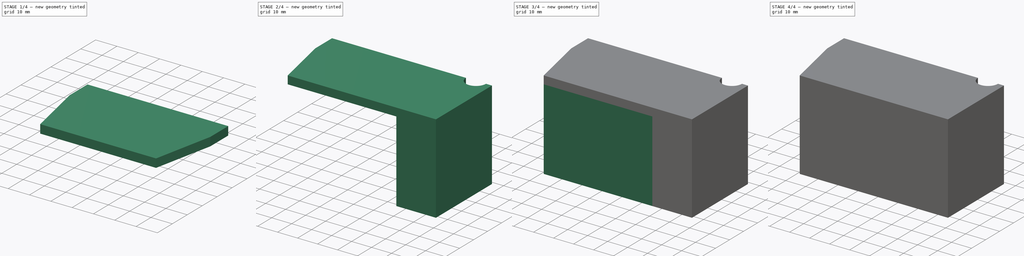
[diagram: build sequence overview — one tinted view per stage of 4, left to right]
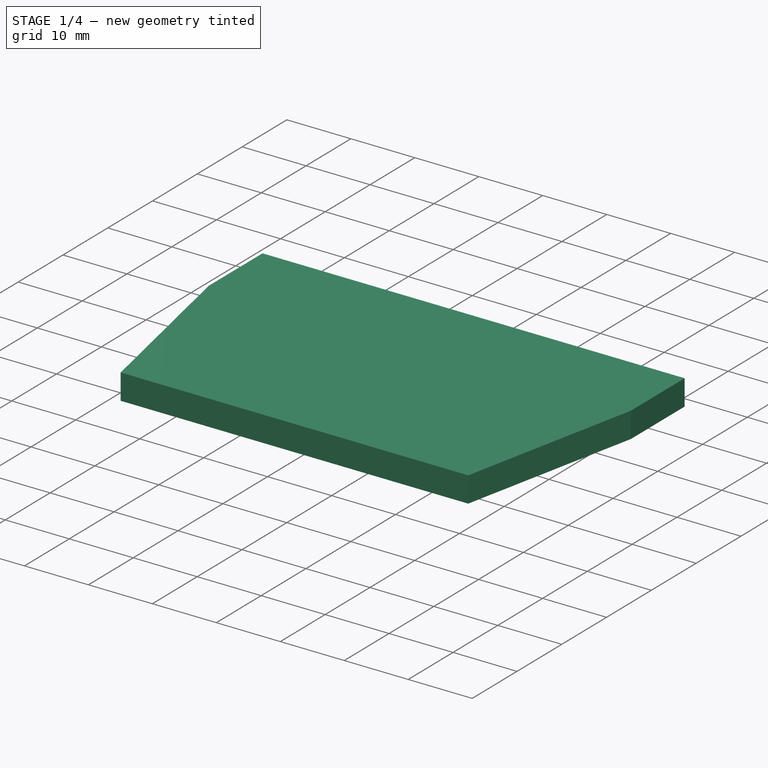
[diagram: stage 1 of 4 — iso view after this stage's code; geometry added in this stage tinted green]
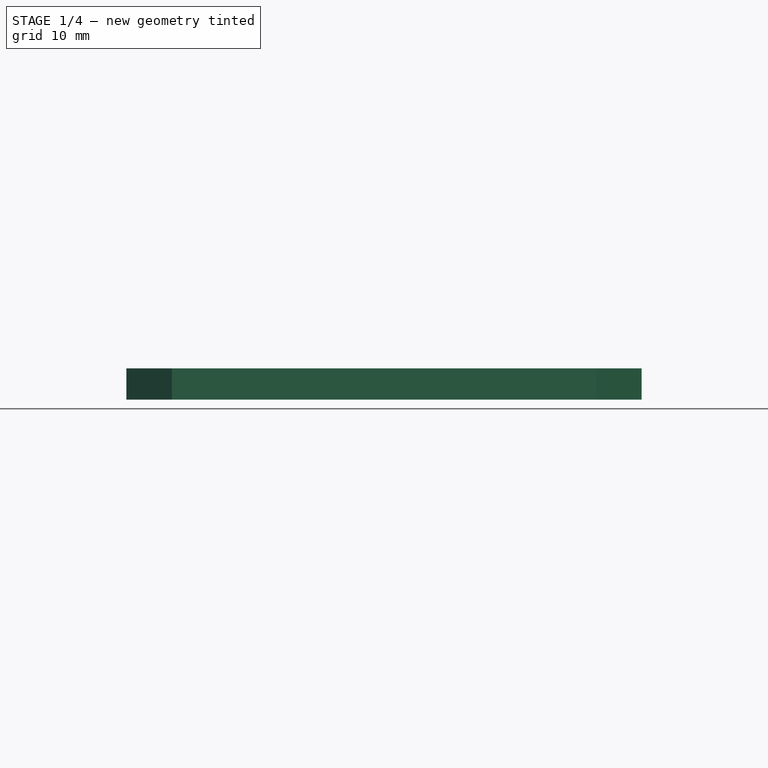
[diagram: stage 1 of 4 — front view after this stage's code; geometry added in this stage tinted green]
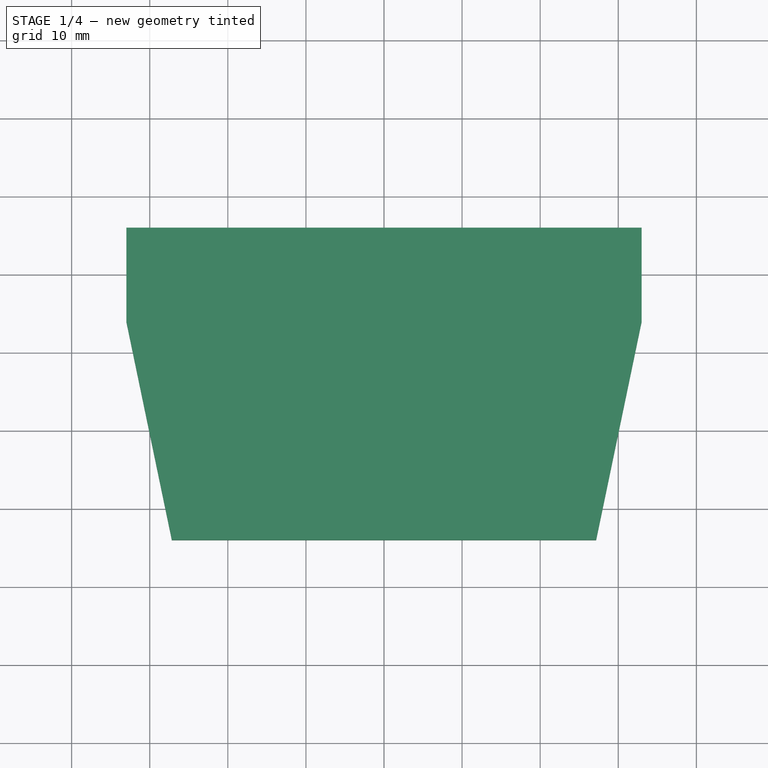
[diagram: stage 1 of 4 — top view after this stage's code; geometry added in this stage tinted green]
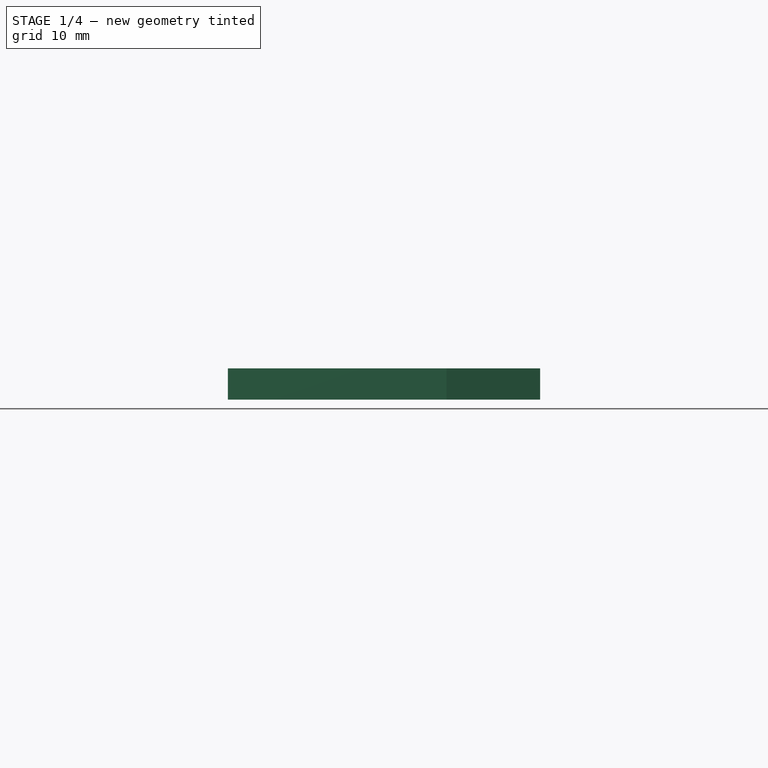
[diagram: stage 1 of 4 — right view after this stage's code; geometry added in this stage tinted green]
FCSTD DOCUMENT  (FreeCAD 0.19RUnknown)
Label: ink
License: All rights reserved
LicenseURL: http://en.wikipedia.org/wiki/All_rights_reserved
objects: Sketcher::SketchObject×4, Part::Extrusion×4, Part::Chamfer×4, Part::MultiFuse×1
note: 13 computed .brp shape members not serialized (recipe doc carries the construction recipe); baked Part::Feature solids carry a one-line shape summary decoded from their .brp

FEATURE [Sketcher::SketchObject] Sketch
  FullyConstrained = true
  sketch-geometry (16):
    g0: LineSegment StartX=-24 StartY=0 StartZ=0 EndX=24 EndY=0 EndZ=0
    g1: LineSegment StartX=-29 StartY=24 StartZ=0 EndX=29 EndY=24 EndZ=0
    g2: GeomPoint X=0 Y=24 Z=0
    g3: LineSegment StartX=-24 StartY=0 StartZ=0 EndX=-29 EndY=24 EndZ=0
    g4: LineSegment StartX=24 StartY=0 StartZ=0 EndX=29 EndY=24 EndZ=0
    g5: LineSegment StartX=29 StartY=24 StartZ=0 EndX=29 EndY=36 EndZ=0
    g6: LineSegment StartX=-29 StartY=24 StartZ=0 EndX=-29 EndY=36 EndZ=0
    g7: LineSegment StartX=29 StartY=36 StartZ=0 EndX=33 EndY=36 EndZ=0
    g8: LineSegment StartX=33 StartY=36 StartZ=0 EndX=33 EndY=24 EndZ=0
    g9: LineSegment StartX=33 StartY=24 StartZ=0 EndX=27.1667 EndY=-4 EndZ=0
    g10: LineSegment StartX=27.1667 StartY=-4 StartZ=0 EndX=-27.1667 EndY=-4 EndZ=0
    g11: LineSegment StartX=-27.1667 StartY=-4 StartZ=0 EndX=-33 EndY=24 EndZ=0
    g12: LineSegment StartX=-33 StartY=24 StartZ=0 EndX=-33 EndY=36 EndZ=0
    g13: LineSegment StartX=-33 StartY=36 StartZ=0 EndX=-29 EndY=36 EndZ=0
    g14: LineSegment StartX=29 StartY=24 StartZ=0 EndX=33 EndY=24 EndZ=0
    g15: LineSegment StartX=-29 StartY=24 StartZ=0 EndX=-33 EndY=24 EndZ=0
  constraints (42):
    c: Horizontal(g0)
    c: DistanceX(g0,g0) = 48
    c: Symmetric(g0,g0,g-1)
    c: Horizontal(g1)
    c: DistanceX(g1,g1) = 58
    c: PointOnObject(g2,g-2)
    c: Symmetric(g1,g1,g2)
    c: DistanceY(g0,g1) = 24
    c: Coincident(g3,g0)
    c: Coincident(g3,g1)
    c: Coincident(g4,g0)
    c: Coincident(g4,g1)
    c: Coincident(g5,g4)
    c: Vertical(g5)
    c: Coincident(g6,g3)
    c: Vertical(g6)
    c: Equal(g5,g6)
    c: DistanceY(g5,g5) = 12
    c: Coincident(g7,g5)
    c: Horizontal(g7)
    c: Coincident(g8,g7)
    c: Vertical(g8)
    c: Coincident(g9,g8)
    c: Coincident(g10,g9)
    c: Horizontal(g10)
    c: Coincident(g11,g10)
    c: Coincident(g12,g11)
    c: Vertical(g12)
    c: Coincident(g13,g12)
    c: Coincident(g13,g6)
    c: Horizontal(g13)
    c: Equal(g7,g13)
    c: Equal(g12,g8)
    c: Equal(g9,g11)
    c: Coincident(g14,g4)
    c: Coincident(g14,g8)
    c: Horizontal(g14)
    c: Coincident(g15,g3)
    c: Coincident(g15,g11)
    c: Parallel(g4,g9)
    c: DistanceX(g7,g7) = 4
    c: DistanceY(g9,g0) = 4
FEATURE [Part::Extrusion] Extrude
  Base = -> Sketch
  Dir = (0,0,1)
  DirMode = 2
  FaceMakerClass = Part::FaceMakerBullseye
  LengthFwd = 36.5
  LengthRev = 0
  Solid = true
  Symmetric = false
FEATURE [Sketcher::SketchObject] Sketch002
  ExternalGeometry = -> [Extrude]
  FullyConstrained = true
  MapMode = 5
  Placement = pos=(0,0,0) rot=(1,0,0;3.14159rad)
  Support = -> [Extrude]
  sketch-geometry (6):
    g0: LineSegment StartX=-33 StartY=-36 StartZ=0 EndX=-33 EndY=-24 EndZ=0
    g1: LineSegment StartX=-33 StartY=-24 StartZ=0 EndX=-27.1667 EndY=4 EndZ=0
    g2: LineSegment StartX=-27.1667 StartY=4 StartZ=0 EndX=27.1667 EndY=4 EndZ=0
    g3: LineSegment StartX=27.1667 StartY=4 StartZ=0 EndX=33 EndY=-24 EndZ=0
    g4: LineSegment StartX=33 StartY=-24 StartZ=0 EndX=33 EndY=-36 EndZ=0
    g5: LineSegment StartX=33 StartY=-36 StartZ=0 EndX=-33 EndY=-36 EndZ=0
  constraints (12):
    c: Coincident(g0,g-3)
    c: Coincident(g0,g-4)
    c: Coincident(g1,g0)
    c: Coincident(g1,g-5)
    c: Coincident(g2,g1)
    c: Coincident(g2,g-6)
    c: Coincident(g3,g2)
    c: Coincident(g3,g-7)
    c: Coincident(g4,g3)
    c: Coincident(g4,g-7)
    c: Coincident(g5,g4)
    c: Coincident(g5,g0)
FEATURE [Part::Extrusion] Extrude002
  Base = -> Sketch002
  Dir = (0,0,-1)
  DirMode = 2
  FaceMakerClass = Part::FaceMakerBullseye
  LengthFwd = 4
  LengthRev = 0
  Solid = true
  Symmetric = false
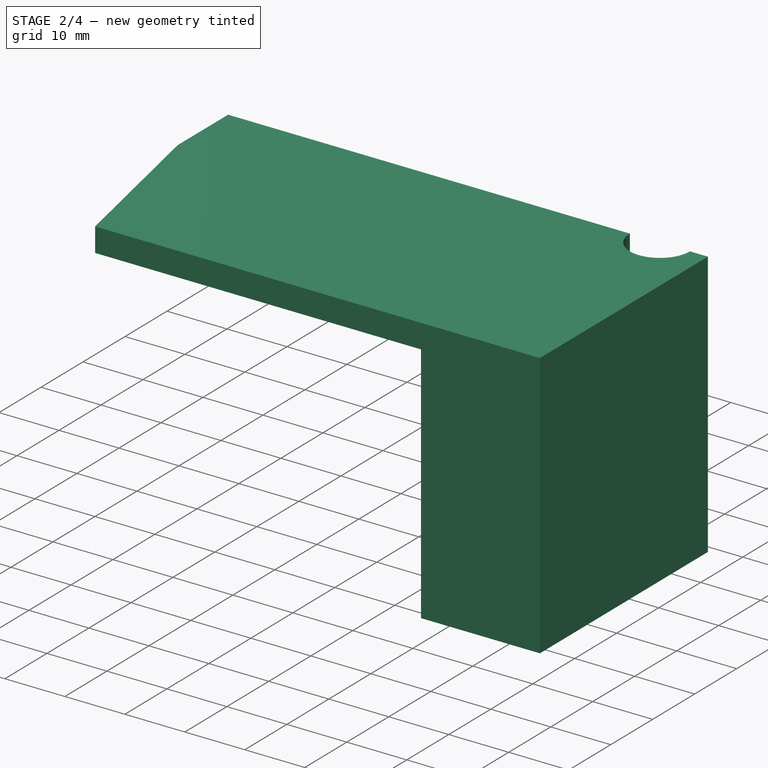
[diagram: stage 2 of 4 — iso view after this stage's code; geometry added in this stage tinted green]
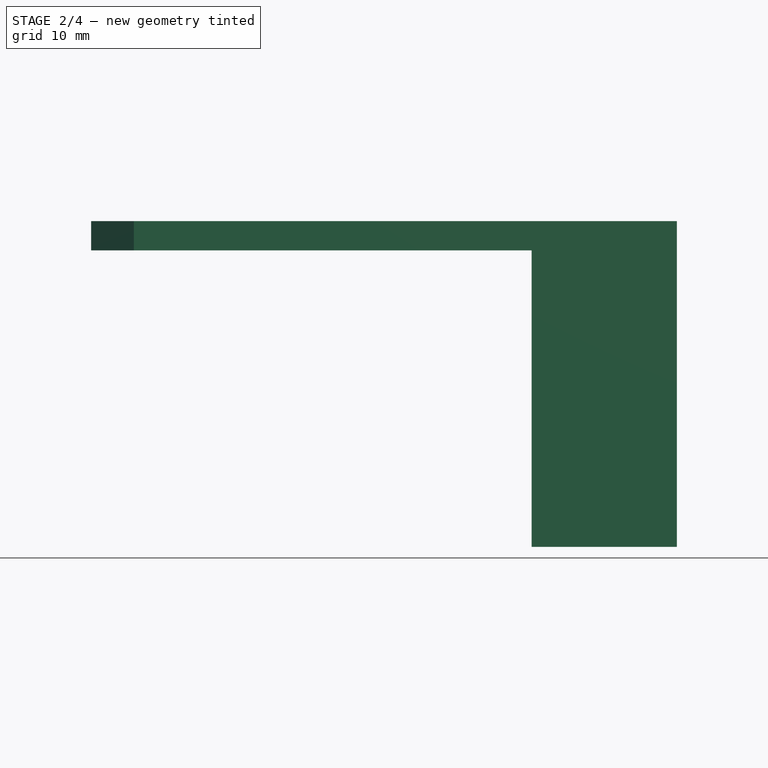
[diagram: stage 2 of 4 — front view after this stage's code; geometry added in this stage tinted green]
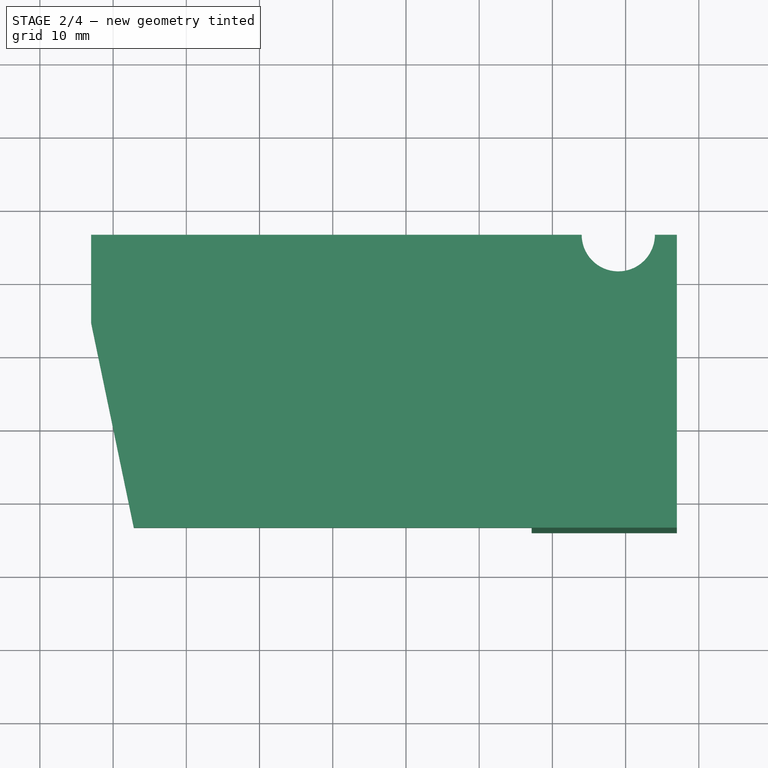
[diagram: stage 2 of 4 — top view after this stage's code; geometry added in this stage tinted green]
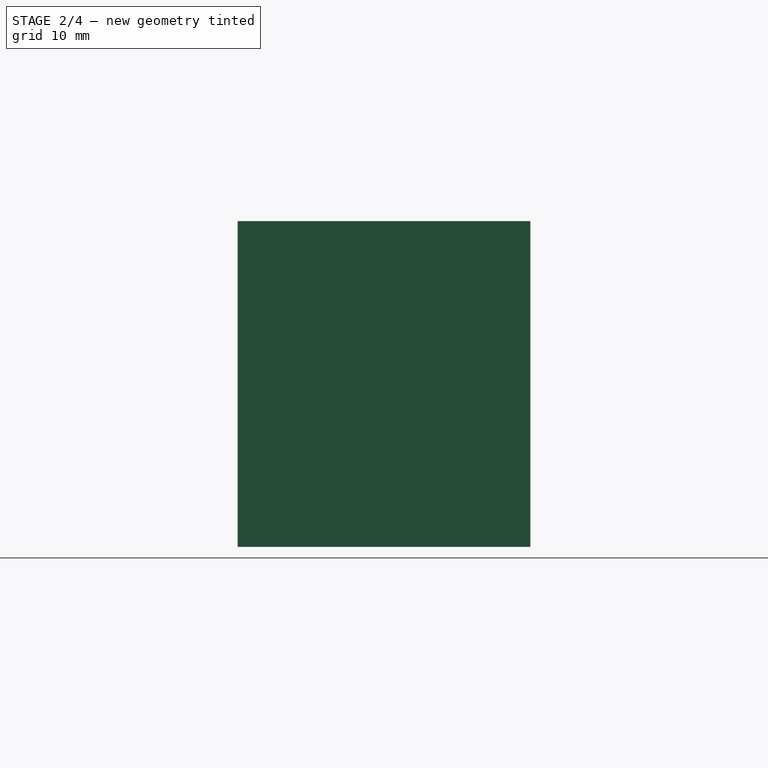
[diagram: stage 2 of 4 — right view after this stage's code; geometry added in this stage tinted green]
FEATURE [Sketcher::SketchObject] Sketch001
  ExternalGeometry = -> [Extrude]
  FullyConstrained = false
  MapMode = 5
  Placement = pos=(0,0,36.5) rot=(0,0,1;0rad)
  Support = -> [Extrude]
  sketch-geometry (6):
    g0: LineSegment StartX=-33 StartY=36 StartZ=0 EndX=33 EndY=36 EndZ=0
    g1: LineSegment StartX=-33 StartY=36 StartZ=0 EndX=-33 EndY=24 EndZ=0
    g2: LineSegment StartX=-33 StartY=24 StartZ=0 EndX=-27.1667 EndY=-4 EndZ=0
    g3: LineSegment StartX=-27.1667 StartY=-4 StartZ=0 EndX=27.1667 EndY=-4 EndZ=0
    g4: LineSegment StartX=27.1667 StartY=-4 StartZ=0 EndX=33 EndY=24 EndZ=0
    g5: LineSegment StartX=33 StartY=24 StartZ=0 EndX=33 EndY=36 EndZ=0
  constraints (12):
    c: Coincident(g0,g-3)
    c: Coincident(g0,g-8)
    c: Coincident(g1,g0)
    c: Coincident(g1,g-4)
    c: Coincident(g2,g1)
    c: Coincident(g2,g-5)
    c: Coincident(g3,g2)
    c: Coincident(g3,g-6)
    c: Coincident(g4,g3)
    c: Coincident(g4,g-7)
    c: Coincident(g5,g4)
    c: Coincident(g5,g0)
FEATURE [Part::Extrusion] Extrude001
  Base = -> Sketch001
  Dir = (0,0,1)
  DirMode = 2
  FaceMakerClass = Part::FaceMakerBullseye
  LengthFwd = 4
  LengthRev = 0
  Solid = true
  Symmetric = false
FEATURE [Sketcher::SketchObject] Sketch003
  ExternalGeometry = -> [Extrude002]
  FullyConstrained = true
  MapMode = 5
  Placement = pos=(0,0,-4) rot=(1,0,0;3.14159rad)
  Support = -> [Extrude002]
  sketch-geometry (9):
    g0: LineSegment StartX=27.1667 StartY=4 StartZ=0 EndX=47 EndY=4 EndZ=0
    g1: LineSegment StartX=33 StartY=-36 StartZ=0 EndX=34 EndY=-36 EndZ=0
    g2: LineSegment StartX=34 StartY=-36 StartZ=0 EndX=44 EndY=-36 EndZ=0
    g3: Circle CenterX=39 CenterY=-36 CenterZ=0 NormalX=0 NormalY=0 NormalZ=1 AngleXU=0 Radius=5
    g4: ArcOfCircle CenterX=39 CenterY=-36 CenterZ=0 NormalX=0 NormalY=0 NormalZ=1 AngleXU=0 Radius=5 StartAngle=2.78e-14 EndAngle=3.14159
    g5: LineSegment StartX=44 StartY=-36 StartZ=0 EndX=47 EndY=-36 EndZ=0
    g6: LineSegment StartX=47 StartY=-36 StartZ=0 EndX=47 EndY=4 EndZ=0
    g7: LineSegment StartX=27.1667 StartY=4 StartZ=0 EndX=33 EndY=-24 EndZ=0
    g8: LineSegment StartX=33 StartY=-24 StartZ=0 EndX=33 EndY=-36 EndZ=0
  constraints (23):
    c: Coincident(g0,g-4)
    c: Horizontal(g0)
    c: Coincident(g1,g-3)
    c: Horizontal(g1)
    c: Coincident(g2,g1)
    c: PointOnObject(g1,g3)
    c: PointOnObject(g3,g2)
    c: Coincident(g4,g3)
    c: Coincident(g4,g1)
    c: Coincident(g4,g2)
    c: Coincident(g5,g4)
    c: Horizontal(g5)
    c: Coincident(g6,g5)
    c: Coincident(g6,g0)
    c: DistanceX(g1,g1) = 1
    c: DistanceX(g2,g2) = 10
    c: Vertical(g6)
    c: Coincident(g7,g0)
    c: Coincident(g7,g-4)
    c: Coincident(g8,g7)
    c: Coincident(g8,g1)
    c: Horizontal(g2)
    c: DistanceX(g5,g5) = 3
FEATURE [Part::Extrusion] Extrude003
  Base = -> Sketch003
  Dir = (0,0,-1)
  DirLink = -> Extrude [Edge11]
  DirMode = 2
  FaceMakerClass = Part::FaceMakerBullseye
  LengthFwd = -44.5
  LengthRev = 0
  Solid = true
  Symmetric = false
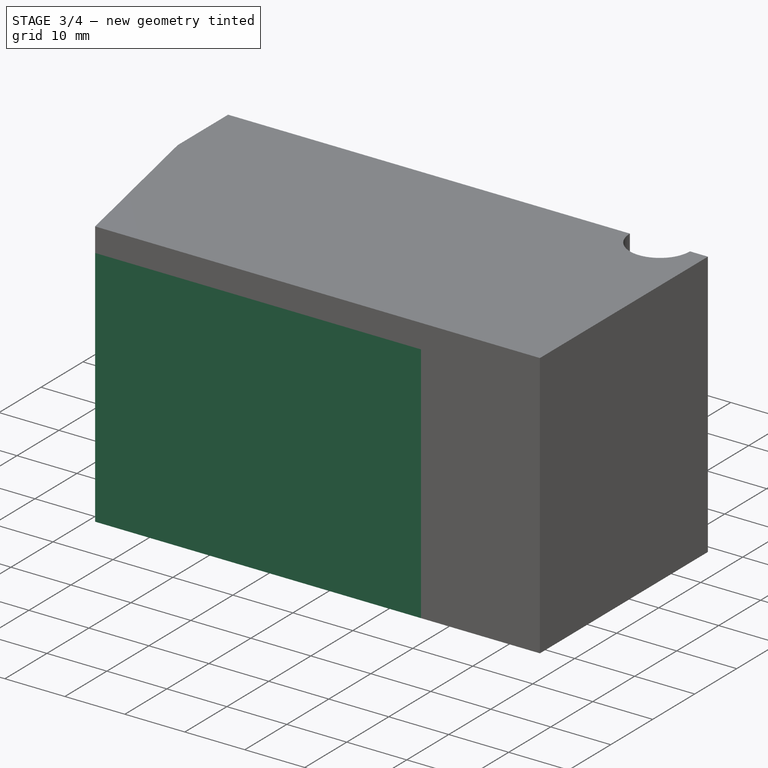
[diagram: stage 3 of 4 — iso view after this stage's code; geometry added in this stage tinted green]
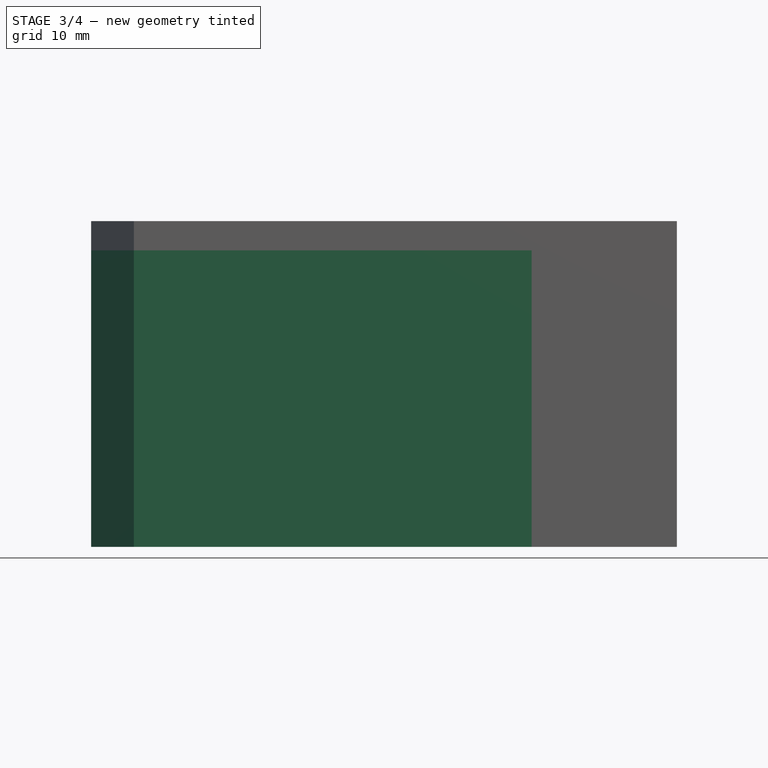
[diagram: stage 3 of 4 — front view after this stage's code; geometry added in this stage tinted green]
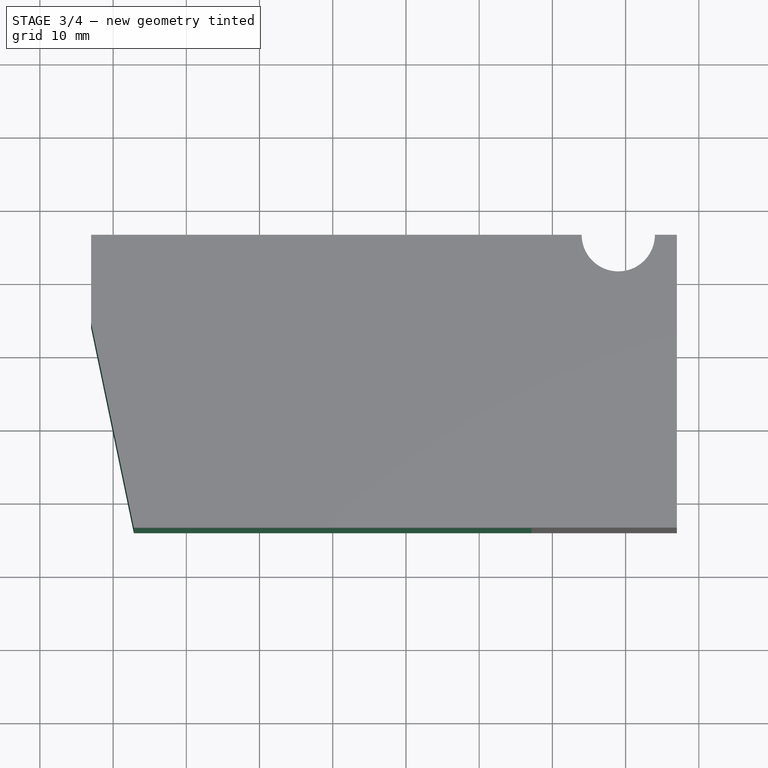
[diagram: stage 3 of 4 — top view after this stage's code; geometry added in this stage tinted green]
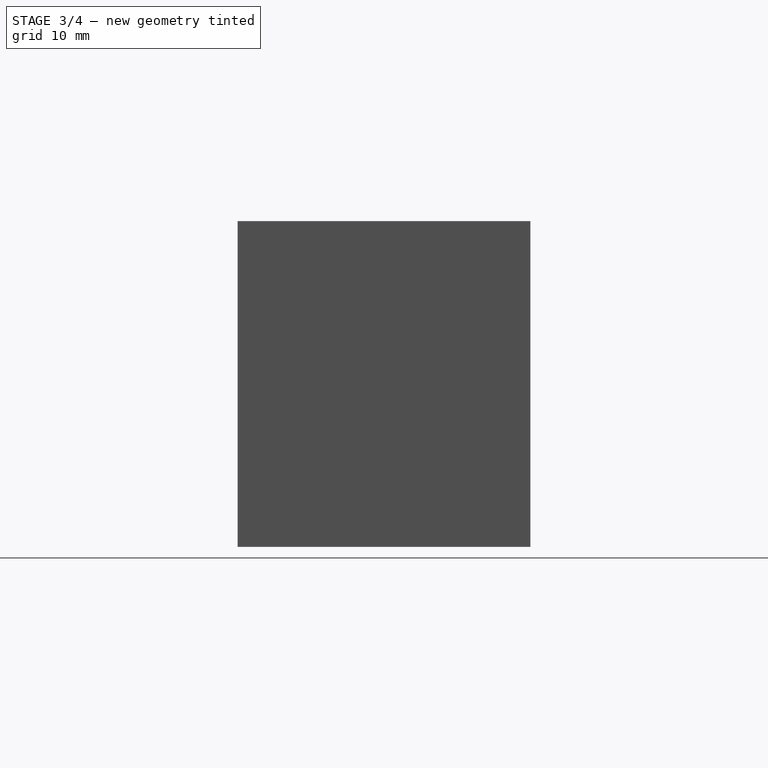
[diagram: stage 3 of 4 — right view after this stage's code; geometry added in this stage tinted green]
FEATURE [Part::MultiFuse] Fusion
  Shapes = -> [Extrude,Extrude001,Extrude002,Extrude003]
FEATURE [Part::Chamfer] Chamfer
  Base = -> Fusion
  Edges = 1 edges r=3: [Edge14]
FEATURE [Part::Chamfer] Chamfer001
  Base = -> Chamfer
  Edges = 1 edges r=3: [Edge28]
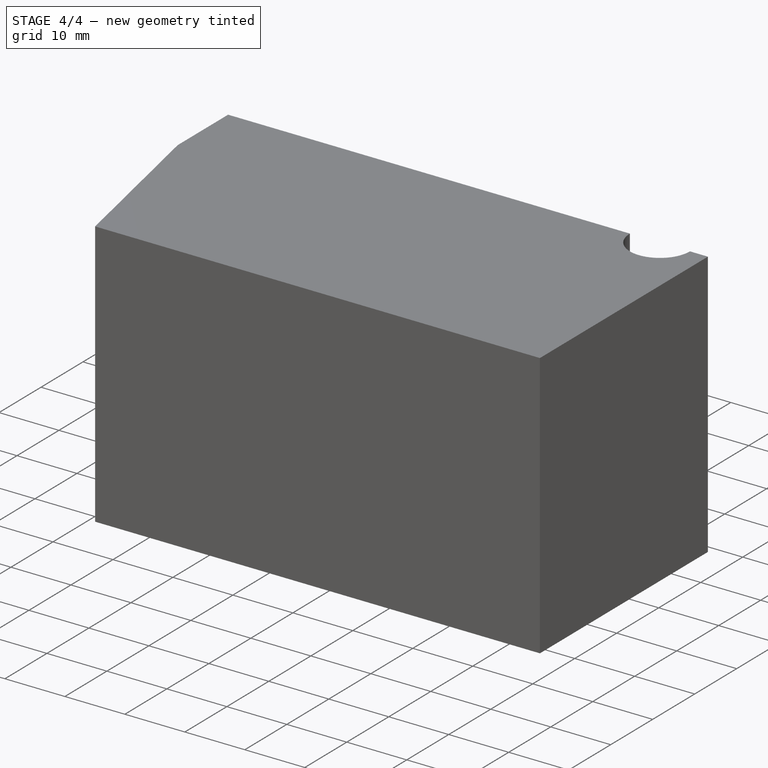
[diagram: stage 4 of 4 — iso view after this stage's code; geometry added in this stage tinted green]
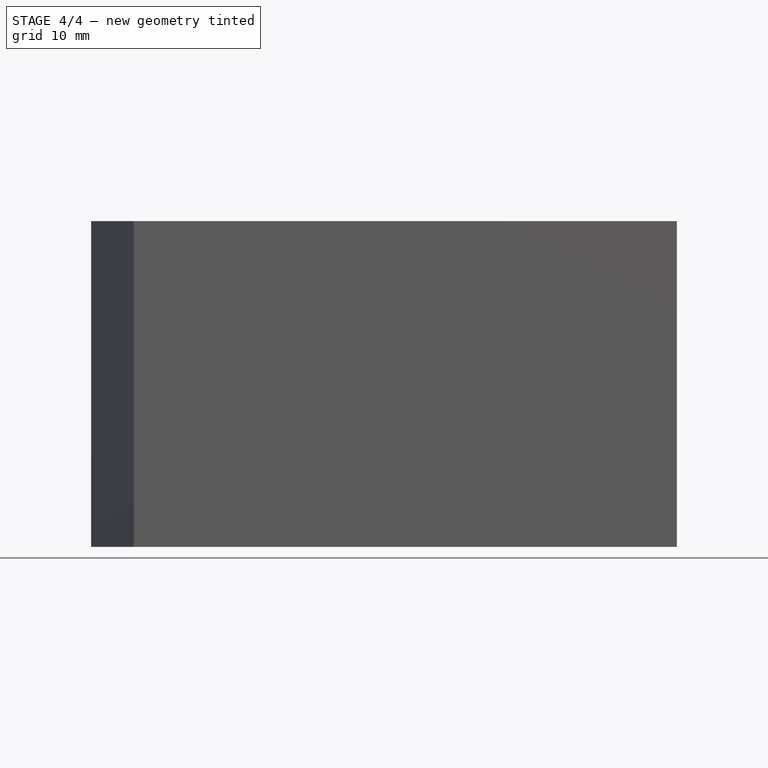
[diagram: stage 4 of 4 — front view after this stage's code; geometry added in this stage tinted green]
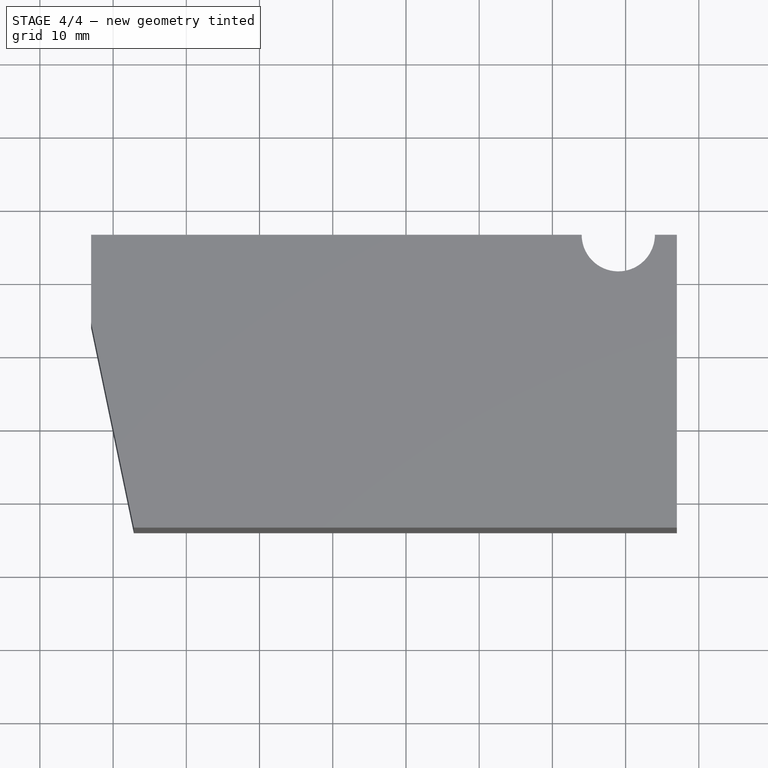
[diagram: stage 4 of 4 — top view after this stage's code; geometry added in this stage tinted green]
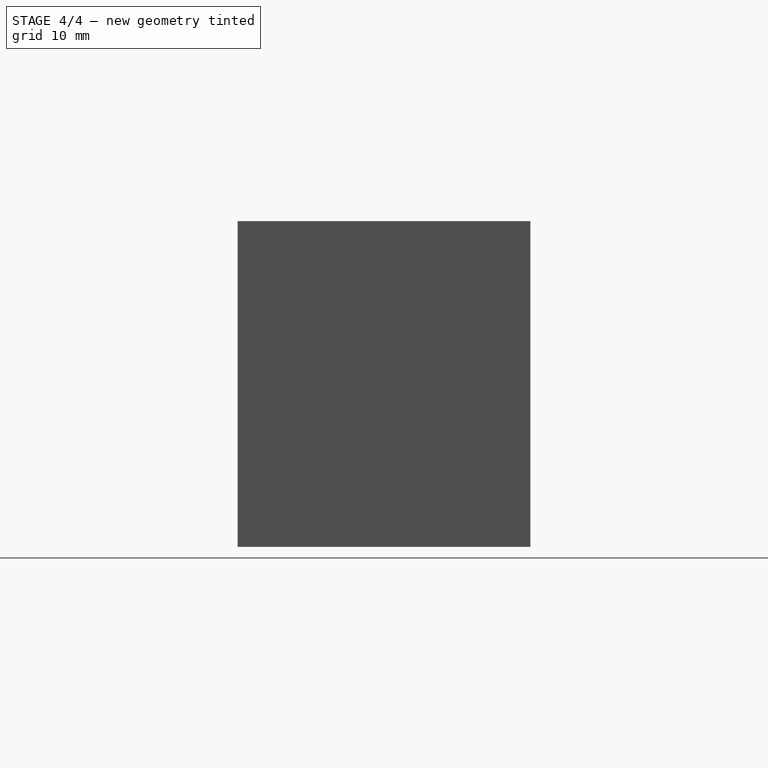
[diagram: stage 4 of 4 — right view after this stage's code; geometry added in this stage tinted green]
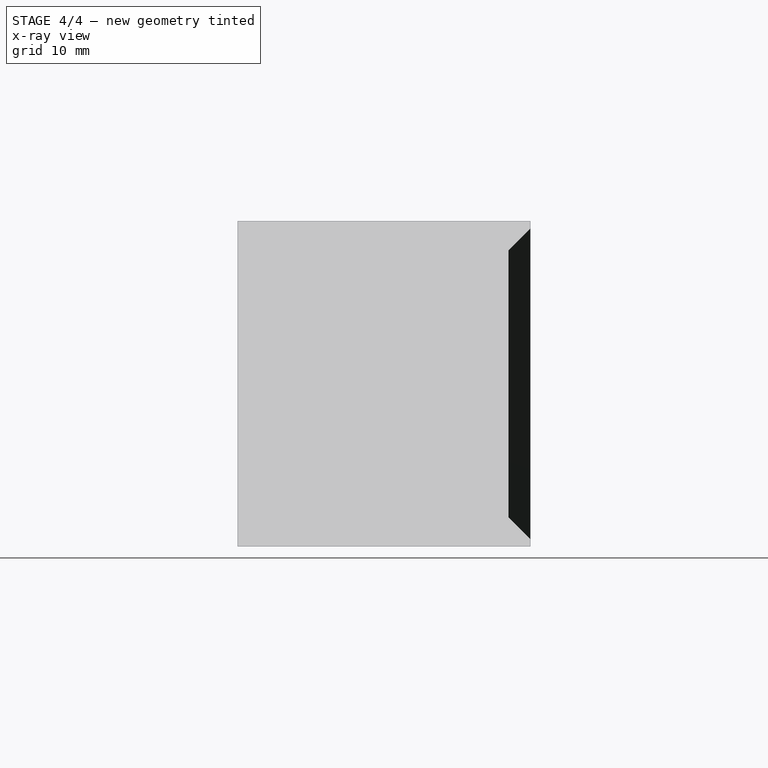
[diagram: stage 4 of 4 — x-ray composite at the right view; earlier geometry ghosted, this stage's added geometry solid]
FEATURE [Part::Chamfer] Chamfer002
  Base = -> Chamfer001
  Edges = 3 edges r=3: [Edge5,Edge6,Edge7]
FEATURE [Part::Chamfer] Chamfer003
  Base = -> Chamfer002
  Edges = 3 edges r=3: [Edge31,Edge32,Edge33]
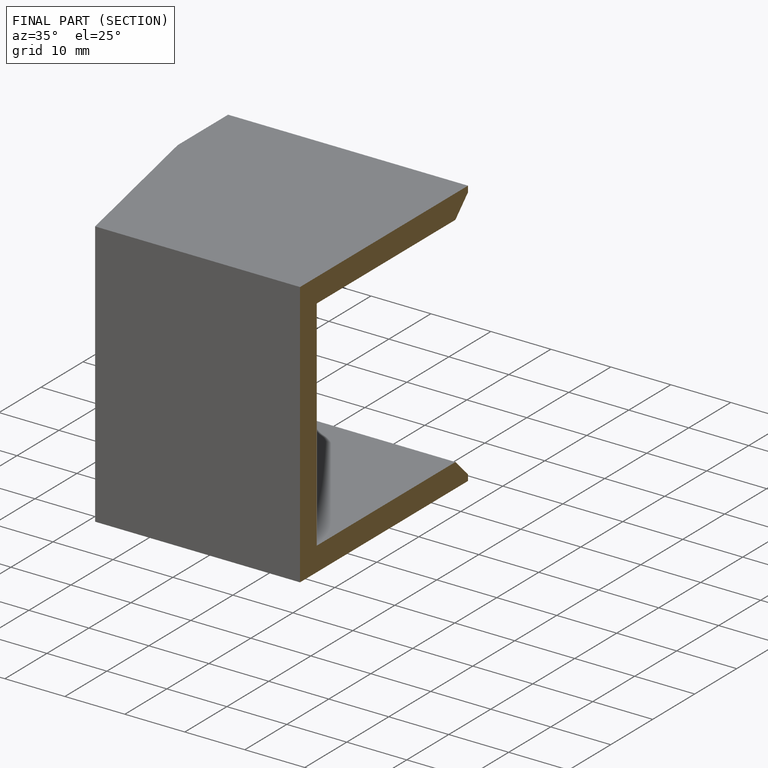
[diagram: finished part — half-section view (interior)]
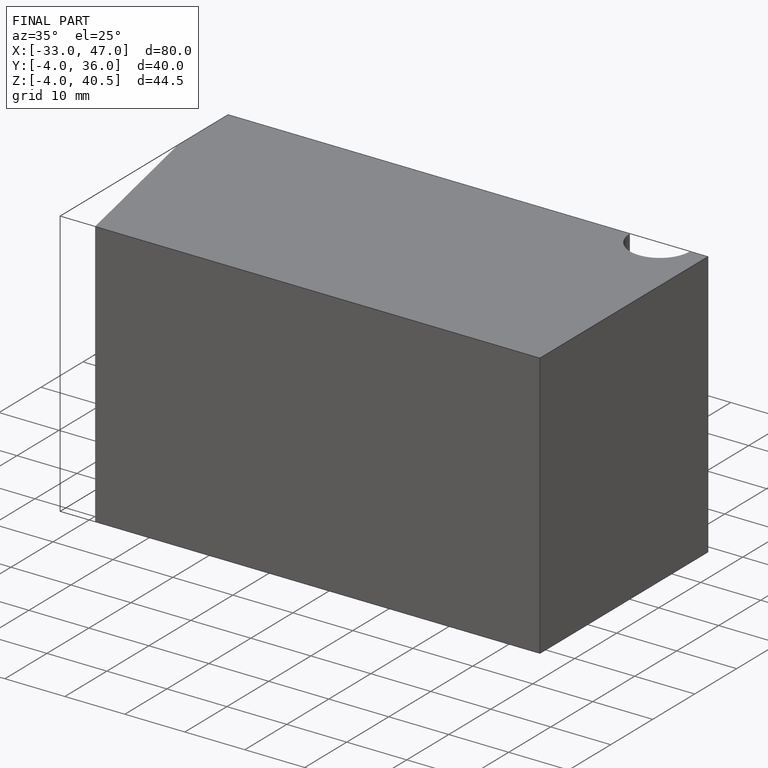
[diagram: finished part — iso view with bounding-box wireframe]
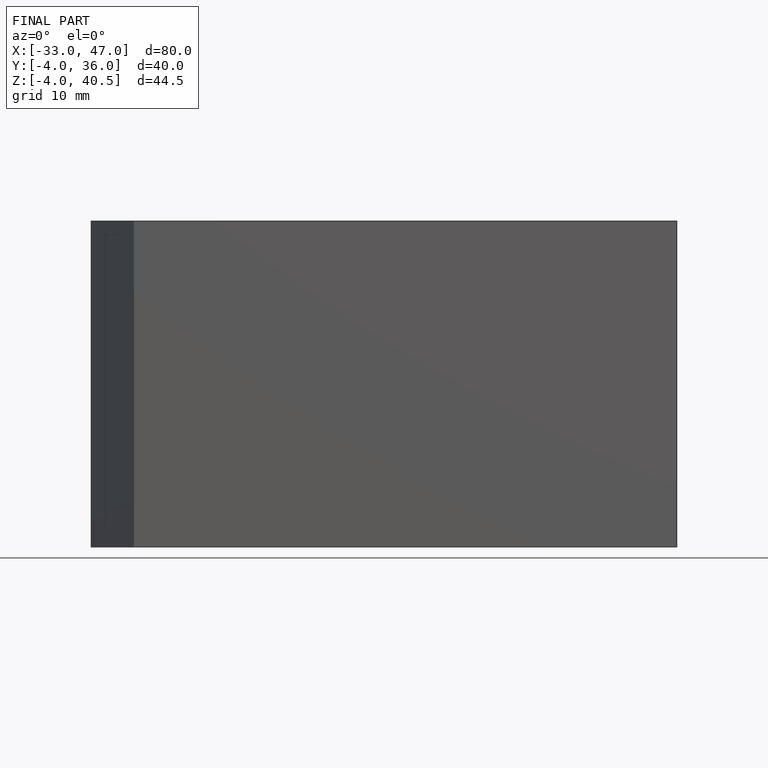
[diagram: finished part — front view with bounding-box wireframe]
